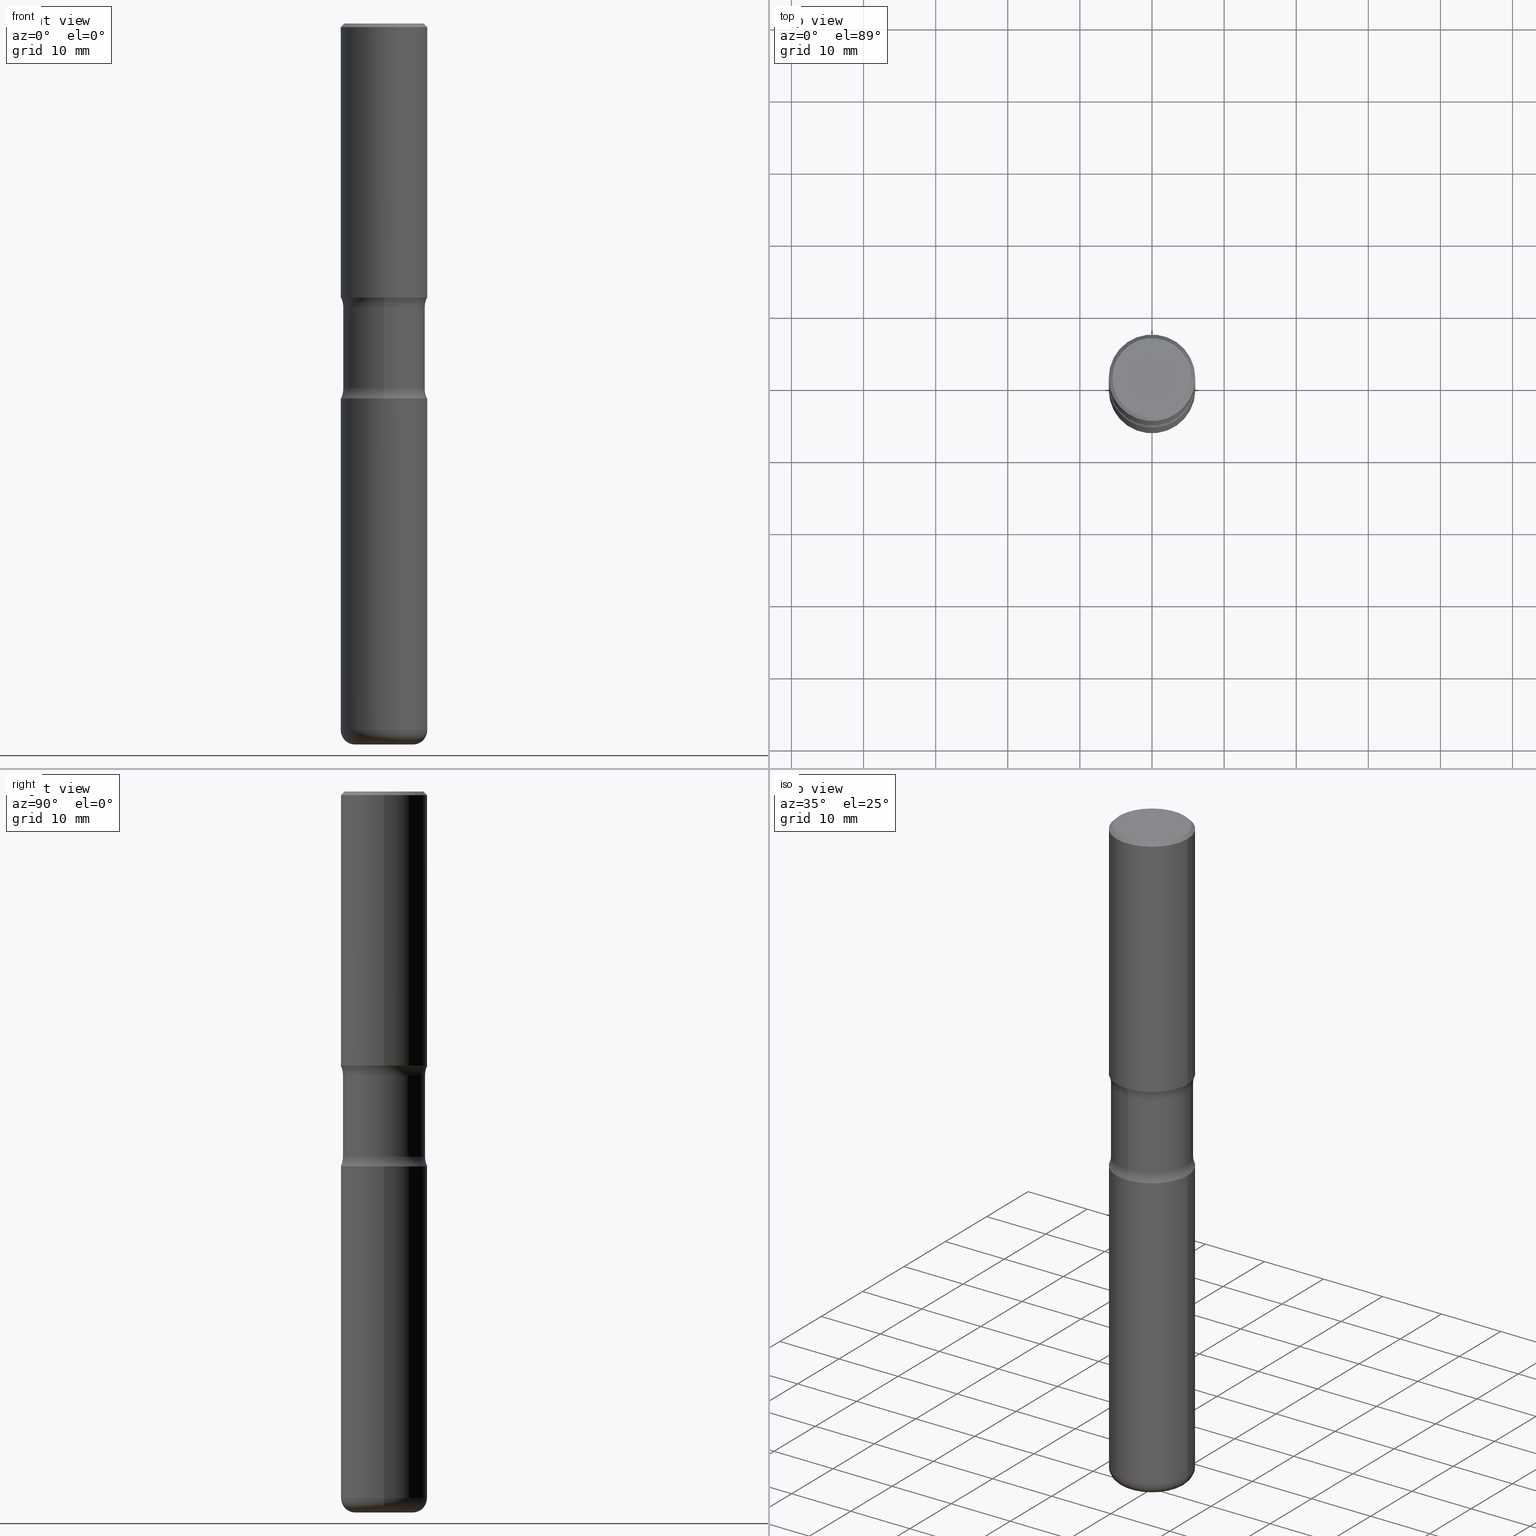
[diagram: canonical four-view strip — front | top / right | iso, engineering-drawing reading convention]
A machine part, canonical four-view strip (front | top / right | iso — engineering-drawing reading convention). The complete STEP part file that produces these views, byte-faithful:
ISO-10303-21;
HEADER;
FILE_DESCRIPTION (( 'STEP AP203' ),
    '1' );
FILE_NAME ('44748.STEP',
    '2024-03-02T02:43:39',
    ( '' ),
    ( '' ),
    'SwSTEP 2.0',
    'SolidWorks 2023',
    '' );
FILE_SCHEMA (( 'CONFIG_CONTROL_DESIGN' ));
ENDSEC;

DATA;
#1 = ORIENTED_EDGE ( 'NONE', *, *, #469, .T. ) ;
#2 = CARTESIAN_POINT ( 'NONE',  ( 9.435352294904113263E-29, -1.347118244965851008E-14, -3.858300000000000729 ) ) ;
#3 = ADVANCED_FACE ( 'NONE', ( #355 ), #12, .F. ) ;
#4 = ORIENTED_EDGE ( 'NONE', *, *, #254, .T. ) ;
#5 = CARTESIAN_POINT ( 'NONE',  ( -0.2362000000000004374, -9.684154870446855490E-16, -1.496100000000000430 ) ) ;
#6 = PRODUCT ( '44748', '44748', '', ( #299 ) ) ;
#7 = AXIS2_PLACEMENT_3D ( 'NONE', #407, #205, #544 ) ;
#8 = AXIS2_PLACEMENT_3D ( 'NONE', #295, #450, #28 ) ;
#9 = EDGE_LOOP ( 'NONE', ( #113, #551, #143, #58 ) ) ;
#10 = DIRECTION ( 'NONE',  ( -6.982962677686265133E-15, -1.000000000000000000, 0.000000000000000000 ) ) ;
#11 = ADVANCED_FACE ( 'NONE', ( #291 ), #516, .T. ) ;
#12 = PLANE ( 'NONE',  #212 ) ;
#13 = FACE_OUTER_BOUND ( 'NONE', #513, .T. ) ;
#14 = DIRECTION ( 'NONE',  ( 6.982962677686265922E-15, 1.000000000000000000, -3.469747663417773452E-15 ) ) ;
#15 = ORIENTED_EDGE ( 'NONE', *, *, #469, .F. ) ;
#16 = CARTESIAN_POINT ( 'NONE',  ( 9.687424416766102159E-29, -1.366059178122345804E-14, -3.937000000000000721 ) ) ;
#17 = ORIENTED_EDGE ( 'NONE', *, *, #345, .T. ) ;
#18 = CIRCLE ( 'NONE', #357, 0.07869999999999956197 ) ;
#19 = FACE_OUTER_BOUND ( 'NONE', #229, .T. ) ;
#20 = CARTESIAN_POINT ( 'NONE',  ( 0.1575000000000002232, -1.484577865276105326E-14, -3.937000000000000277 ) ) ;
#21 = FACE_OUTER_BOUND ( 'NONE', #472, .T. ) ;
#22 =( NAMED_UNIT ( * ) SI_UNIT ( $, .STERADIAN. ) SOLID_ANGLE_UNIT ( ) );
#23 = EDGE_CURVE ( 'NONE', #351, #501, #97, .T. ) ;
#24 = ORIENTED_EDGE ( 'NONE', *, *, #130, .F. ) ;
#25 = DIRECTION ( 'NONE',  ( -2.445468806185136597E-29, 3.491481338843145583E-15, 1.000000000000000000 ) ) ;
#26 = CARTESIAN_POINT ( 'NONE',  ( 0.000000000000000000, 0.000000000000000000, 0.000000000000000000 ) ) ;
#27 = ORIENTED_EDGE ( 'NONE', *, *, #535, .T. ) ;
#28 = DIRECTION ( 'NONE',  ( 1.000000000000000000, -6.982962677686270655E-15, 4.883557194083114583E-29 ) ) ;
#29 = AXIS2_PLACEMENT_3D ( 'NONE', #459, #253, #341 ) ;
#30 = AXIS2_PLACEMENT_3D ( 'NONE', #230, #431, #282 ) ;
#31 = DIRECTION ( 'NONE',  ( -6.982962677686265922E-15, -1.000000000000000000, 3.446307114162222138E-15 ) ) ;
#32 = LINE ( 'NONE', #417, #435 ) ;
#33 = SHAPE_DEFINITION_REPRESENTATION ( #315, #439 ) ;
#34 = DIRECTION ( 'NONE',  ( -1.000000000000000000, 6.982962677686265922E-15, -4.883557194083112340E-29 ) ) ;
#35 = ORIENTED_EDGE ( 'NONE', *, *, #380, .T. ) ;
#36 = SECURITY_CLASSIFICATION_LEVEL ( 'unclassified' ) ;
#37 = AXIS2_PLACEMENT_3D ( 'NONE', #300, #86, #82 ) ;
#38 = CARTESIAN_POINT ( 'NONE',  ( 0.2361999999999999378, -1.512055823412800660E-14, -3.858300000000000729 ) ) ;
#39 = LINE ( 'NONE', #375, #124 ) ;
#40 = AXIS2_PLACEMENT_3D ( 'NONE', #239, #117, #532 ) ;
#41 = APPROVAL_ROLE ( '' ) ;
#42 = CARTESIAN_POINT ( 'NONE',  ( 0.2362000000000002153, -8.797136381349187883E-15, -2.047200000000000575 ) ) ;
#43 = DIRECTION ( 'NONE',  ( -2.445468806185136597E-29, 3.491481338843145583E-15, 1.000000000000000000 ) ) ;
#44 = EDGE_CURVE ( 'NONE', #313, #430, #231, .T. ) ;
#45 = APPROVAL_DATE_TIME ( #81, #178 ) ;
#46 = ORIENTED_EDGE ( 'NONE', *, *, #506, .F. ) ;
#47 = AXIS2_PLACEMENT_3D ( 'NONE', #121, #444, #72 ) ;
#48 = CARTESIAN_POINT ( 'NONE',  ( 1.649375784469547210E-15, 0.2361999999999930544, -2.047200000000001463 ) ) ;
#49 = ADVANCED_FACE ( 'NONE', ( #371 ), #210, .T. ) ;
#50 = DIRECTION ( 'NONE',  ( 6.982962677686265922E-15, 1.000000000000000000, -3.658724991514637697E-15 ) ) ;
#51 = ORIENTED_EDGE ( 'NONE', *, *, #246, .T. ) ;
#52 = PLANE ( 'NONE',  #78 ) ;
#53 = CC_DESIGN_DATE_AND_TIME_ASSIGNMENT ( #555, #136, ( #238 ) ) ;
#54 = ORIENTED_EDGE ( 'NONE', *, *, #137, .T. ) ;
#55 = DIRECTION ( 'NONE',  ( 2.477013798679166358E-29, -3.446307114162222532E-15, -1.000000000000000000 ) ) ;
#56 = MANIFOLD_SOLID_BREP ( 'Body-Move/Copy2[2]', #185 ) ;
#57 = AXIS2_PLACEMENT_3D ( 'NONE', #427, #104, #189 ) ;
#58 = ORIENTED_EDGE ( 'NONE', *, *, #254, .F. ) ;
#59 = DIRECTION ( 'NONE',  ( 1.000000000000000000, -6.982962677686265133E-15, 0.000000000000000000 ) ) ;
#60 = PRODUCT_RELATED_PRODUCT_CATEGORY ( 'detail', '', ( #6 ) ) ;
#61 = ORIENTED_EDGE ( 'NONE', *, *, #44, .F. ) ;
#62 = FACE_OUTER_BOUND ( 'NONE', #226, .T. ) ;
#63 = FACE_OUTER_BOUND ( 'NONE', #139, .T. ) ;
#64 = CARTESIAN_POINT ( 'NONE',  ( 1.564183639801761664E-15, 0.2239999999999945923, -1.549962417324143304 ) ) ;
#65 = CARTESIAN_POINT ( 'NONE',  ( 4.890937612370289799E-31, -6.982962677686315028E-17, -0.02000000000000006981 ) ) ;
#66 = CARTESIAN_POINT ( 'NONE',  ( 0.2362000000000000210, -1.690279253850499166E-15, -0.02000000000000006981 ) ) ;
#67 = VERTEX_POINT ( 'NONE', #419 ) ;
#68 = CARTESIAN_POINT ( 'NONE',  ( 9.435352294904113263E-29, -1.347118244965851008E-14, -3.858300000000000729 ) ) ;
#69 = CC_DESIGN_PERSON_AND_ORGANIZATION_ASSIGNMENT ( #503, #307, ( #456 ) ) ;
#70 = CARTESIAN_POINT ( 'NONE',  ( -1.620449627073587155E-15, -0.2362000000000073763, -2.047200000000000131 ) ) ;
#71 = VERTEX_POINT ( 'NONE', #20 ) ;
#72 = DIRECTION ( 'NONE',  ( 6.982962677686265133E-15, 1.000000000000000000, -3.446307114162222532E-15 ) ) ;
#73 = EDGE_CURVE ( 'NONE', #156, #557, #184, .T. ) ;
#74 = CARTESIAN_POINT ( 'NONE',  ( 5.006363740022213922E-29, -7.147760596879691357E-15, -2.047200000000000575 ) ) ;
#75 = DIRECTION ( 'NONE',  ( -1.000000000000000000, 6.982962677686265922E-15, -4.876176775795935793E-29 ) ) ;
#76 = DIRECTION ( 'NONE',  ( 6.982962677686265922E-15, 1.000000000000000000, -3.469747663417773452E-15 ) ) ;
#77 = AXIS2_PLACEMENT_3D ( 'NONE', #26, #153, #158 ) ;
#78 = AXIS2_PLACEMENT_3D ( 'NONE', #524, #478, #317 ) ;
#79 = PLANE ( 'NONE',  #134 ) ;
#80 = CARTESIAN_POINT ( 'NONE',  ( 1.564183639801820828E-15, 0.2239999999999864044, -3.937000000000001165 ) ) ;
#81 = DATE_AND_TIME ( #457, #305 ) ;
#82 = DIRECTION ( 'NONE',  ( 6.982962677686265922E-15, 1.000000000000000000, -3.469747663417773452E-15 ) ) ;
#83 = PERSON_AND_ORGANIZATION_ROLE ( 'creator' ) ;
#84 = ORIENTED_EDGE ( 'NONE', *, *, #173, .F. ) ;
#85 = LINE ( 'NONE', #215, #108 ) ;
#86 = DIRECTION ( 'NONE',  ( 2.477013798679166358E-29, -3.446307114162222532E-15, -1.000000000000000000 ) ) ;
#87 = DIRECTION ( 'NONE',  ( 1.000000000000000000, -6.982962677686266711E-15, 4.876176775795935793E-29 ) ) ;
#88 = EDGE_CURVE ( 'NONE', #557, #156, #445, .T. ) ;
#89 = LOCAL_TIME ( 21, 43, 39.00000000000000000, #336 ) ;
#90 = EDGE_LOOP ( 'NONE', ( #479, #35, #559, #423 ) ) ;
#91 = CARTESIAN_POINT ( 'NONE',  ( 0.2362000000000002431, -1.649375784469497906E-15, 1.151752954443001209E-29 ) ) ;
#92 = CC_DESIGN_APPROVAL ( #481, ( #456 ) ) ;
#93 = PERSON_AND_ORGANIZATION ( #120, #115 ) ;
#94 = APPROVAL_DATE_TIME ( #468, #481 ) ;
#95 = ORIENTED_EDGE ( 'NONE', *, *, #323, .F. ) ;
#96 = EDGE_LOOP ( 'NONE', ( #95, #428, #550, #247 ) ) ;
#97 = CIRCLE ( 'NONE', #29, 0.2240000000000000324 ) ;
#98 = TOROIDAL_SURFACE ( 'NONE', #8, 0.1575000000000002232, 0.07869999999999957585 ) ;
#99 = EDGE_LOOP ( 'NONE', ( #405, #132 ) ) ;
#100 = ORIENTED_EDGE ( 'NONE', *, *, #73, .T. ) ;
#101 = DIRECTION ( 'NONE',  ( 2.477013798679166358E-29, -3.446307114162222532E-15, -1.000000000000000000 ) ) ;
#102 = ORIENTED_EDGE ( 'NONE', *, *, #246, .F. ) ;
#103 = ORIENTED_EDGE ( 'NONE', *, *, #44, .T. ) ;
#104 = DIRECTION ( 'NONE',  ( -6.982962677686266711E-15, -1.000000000000000000, 3.491481338843145583E-15 ) ) ;
#105 = ORIENTED_EDGE ( 'NONE', *, *, #209, .F. ) ;
#106 = DIRECTION ( 'NONE',  ( 1.000000000000000000, -6.982962677686270655E-15, 4.883557194083114583E-29 ) ) ;
#107 = CARTESIAN_POINT ( 'NONE',  ( 3.658665880933583510E-29, -5.223605231043231238E-15, -1.496100000000000430 ) ) ;
#108 = VECTOR ( 'NONE', #553, 39.37007874015748143 ) ;
#109 = CIRCLE ( 'NONE', #125, 0.1250000000000000278 ) ;
#110 = VERTEX_POINT ( 'NONE', #392 ) ;
#111 = FACE_OUTER_BOUND ( 'NONE', #353, .T. ) ;
#112 = ADVANCED_FACE ( 'NONE', ( #523 ), #276, .F. ) ;
#113 = ORIENTED_EDGE ( 'NONE', *, *, #369, .T. ) ;
#114 = DIRECTION ( 'NONE',  ( 1.000000000000000000, -6.860497997771530774E-15, 4.841352104320737374E-29 ) ) ;
#115 = ORGANIZATION ( 'UNSPECIFIED', 'UNSPECIFIED', '' ) ;
#116 = DIRECTION ( 'NONE',  ( -2.445468806185136877E-29, 3.491481338843145188E-15, 1.000000000000000000 ) ) ;
#117 = DIRECTION ( 'NONE',  ( -2.445468806185136597E-29, 3.491481338843145583E-15, 1.000000000000000000 ) ) ;
#118 = EDGE_CURVE ( 'NONE', #485, #287, #326, .T. ) ;
#119 = DIRECTION ( 'NONE',  ( -2.445468806185136877E-29, 3.491481338843145188E-15, 1.000000000000000000 ) ) ;
#120 = PERSON ( 'UNSPECIFIED', 'UNSPECIFIED', 'UNSPECIFIED', ('UNSPECIFIED'), ('UNSPECIFIED'), ('UNSPECIFIED') ) ;
#121 = CARTESIAN_POINT ( 'NONE',  ( 3.742693760873325103E-29, -5.479961055837061701E-15, -1.549962417324142638 ) ) ;
#122 = DESIGN_CONTEXT ( 'detailed design', #163, 'design' ) ;
#123 = APPLICATION_PROTOCOL_DEFINITION ( 'international standard', 'config_control_design', 1994, #286 ) ;
#124 = VECTOR ( 'NONE', #119, 39.37007874015748143 ) ;
#125 = AXIS2_PLACEMENT_3D ( 'NONE', #285, #114, #499 ) ;
#126 = VERTEX_POINT ( 'NONE', #127 ) ;
#127 = CARTESIAN_POINT ( 'NONE',  ( -1.620449627073601355E-15, -0.2362000000000055167, -1.496099999999999541 ) ) ;
#128 = APPROVAL_ROLE ( '' ) ;
#129 = DIRECTION ( 'NONE',  ( 1.000000000000000000, -6.982962677686265922E-15, 4.876176775795935793E-29 ) ) ;
#130 = EDGE_CURVE ( 'NONE', #126, #171, #475, .T. ) ;
#131 = APPROVAL_ROLE ( '' ) ;
#132 = ORIENTED_EDGE ( 'NONE', *, *, #118, .T. ) ;
#133 = LINE ( 'NONE', #91, #388 ) ;
#134 = AXIS2_PLACEMENT_3D ( 'NONE', #176, #256, #470 ) ;
#135 = AXIS2_PLACEMENT_3D ( 'NONE', #522, #55, #520 ) ;
#136 = DATE_TIME_ROLE ( 'creation_date' ) ;
#137 = EDGE_CURVE ( 'NONE', #193, #234, #39, .T. ) ;
#138 = ORIENTED_EDGE ( 'NONE', *, *, #73, .F. ) ;
#139 = EDGE_LOOP ( 'NONE', ( #318, #1, #214, #309 ) ) ;
#140 = CARTESIAN_POINT ( 'NONE',  ( 3.742693760873325103E-29, -5.479961055837061701E-15, -1.549962417324142638 ) ) ;
#141 = AXIS2_PLACEMENT_3D ( 'NONE', #279, #201, #232 ) ;
#142 = VECTOR ( 'NONE', #383, 39.37007874015748143 ) ;
#143 = ORIENTED_EDGE ( 'NONE', *, *, #88, .F. ) ;
#144 = DIRECTION ( 'NONE',  ( -2.445468806185136597E-29, 3.491481338843145583E-15, 1.000000000000000000 ) ) ;
#145 = ORIENTED_EDGE ( 'NONE', *, *, #345, .F. ) ;
#146 = ADVANCED_FACE ( 'NONE', ( #552 ), #505, .T. ) ;
#147 = EDGE_CURVE ( 'NONE', #501, #171, #160, .T. ) ;
#148 = FACE_OUTER_BOUND ( 'NONE', #9, .T. ) ;
#149 = ORIENTED_EDGE ( 'NONE', *, *, #432, .T. ) ;
#150 = AXIS2_PLACEMENT_3D ( 'NONE', #65, #241, #403 ) ;
#151 = AXIS2_PLACEMENT_3D ( 'NONE', #488, #144, #59 ) ;
#152 = CARTESIAN_POINT ( 'NONE',  ( 4.874644878630298658E-29, -6.959700971927467721E-15, -1.993337582675859032 ) ) ;
#153 = DIRECTION ( 'NONE',  ( -2.445468806185136597E-29, 3.491481338843145583E-15, 1.000000000000000000 ) ) ;
#154 = LENGTH_MEASURE_WITH_UNIT ( LENGTH_MEASURE( 0.02539999999999999897 ), #360 );
#155 = EDGE_CURVE ( 'NONE', #430, #180, #133, .T. ) ;
#156 = VERTEX_POINT ( 'NONE', #264 ) ;
#157 = DIRECTION ( 'NONE',  ( 2.477013798679166358E-29, -3.446307114162222532E-15, -1.000000000000000000 ) ) ;
#158 = DIRECTION ( 'NONE',  ( 1.000000000000000000, -6.982962677686266711E-15, 4.876176775795935793E-29 ) ) ;
#159 = VERTEX_POINT ( 'NONE', #418 ) ;
#160 = CIRCLE ( 'NONE', #493, 0.1250000000000000278 ) ;
#161 = CARTESIAN_POINT ( 'NONE',  ( 5.219257071676098903E-46, -7.451715851902235727E-32, -2.134256245050205639E-17 ) ) ;
#162 = EDGE_LOOP ( 'NONE', ( #102, #458, #149, #385 ) ) ;
#163 = APPLICATION_CONTEXT ( 'configuration controlled 3d designs of mechanical parts and assemblies' ) ;
#164 = CARTESIAN_POINT ( 'NONE',  ( 0.000000000000000000, 0.000000000000000000, 0.000000000000000000 ) ) ;
#165 = AXIS2_PLACEMENT_3D ( 'NONE', #533, #157, #396 ) ;
#166 = CONICAL_SURFACE ( 'NONE', #402, 0.2362000000000000210, 0.7853981633974477239 ) ;
#167 = EDGE_CURVE ( 'NONE', #159, #234, #349, .T. ) ;
#168 = DIRECTION ( 'NONE',  ( 1.000000000000000000, -6.982962677686266711E-15, 4.876176775795936353E-29 ) ) ;
#169 = CC_DESIGN_PERSON_AND_ORGANIZATION_ASSIGNMENT ( #93, #83, ( #238 ) ) ;
#170 = DATE_AND_TIME ( #463, #312 ) ;
#171 = VERTEX_POINT ( 'NONE', #377 ) ;
#172 = PERSON_AND_ORGANIZATION ( #120, #115 ) ;
#173 = EDGE_CURVE ( 'NONE', #110, #337, #365, .T. ) ;
#174 = VECTOR ( 'NONE', #196, 39.37007874015748143 ) ;
#175 = CIRCLE ( 'NONE', #455, 0.2362000000000002431 ) ;
#176 = CARTESIAN_POINT ( 'NONE',  ( 1.509716530915770718E-15, 0.2162000000000000033, -7.655295466831390880E-16 ) ) ;
#177 = DIRECTION ( 'NONE',  ( 1.000000000000000000, 0.000000000000000000, 0.000000000000000000 ) ) ;
#178 = APPROVAL ( #560, 'UNSPECIFIED' ) ;
#179 = ORIENTED_EDGE ( 'NONE', *, *, #373, .F. ) ;
#180 = VERTEX_POINT ( 'NONE', #66 ) ;
#181 = CARTESIAN_POINT ( 'NONE',  ( 9.627810689950883669E-29, -1.374596203102546341E-14, -3.937000000000000277 ) ) ;
#182 = ORIENTED_EDGE ( 'NONE', *, *, #535, .F. ) ;
#183 = FACE_OUTER_BOUND ( 'NONE', #434, .T. ) ;
#184 = CIRCLE ( 'NONE', #141, 0.2240000000000000879 ) ;
#185 = CLOSED_SHELL ( 'NONE', ( #271, #339, #11, #187, #284, #49 ) ) ;
#186 = CIRCLE ( 'NONE', #135, 0.2362000000000002431 ) ;
#187 = ADVANCED_FACE ( 'NONE', ( #358 ), #79, .F. ) ;
#188 = VERTEX_POINT ( 'NONE', #258 ) ;
#189 = DIRECTION ( 'NONE',  ( 1.000000000000000000, -6.982962677686259611E-15, 0.000000000000000000 ) ) ;
#190 = DIRECTION ( 'NONE',  ( 6.982962677686265922E-15, 1.000000000000000000, -3.446307114162222138E-15 ) ) ;
#191 = ORIENTED_EDGE ( 'NONE', *, *, #542, .T. ) ;
#192 = CARTESIAN_POINT ( 'NONE',  ( -0.2362000000000000210, 1.579546157692633424E-15, -0.02000000000000006981 ) ) ;
#193 = VERTEX_POINT ( 'NONE', #38 ) ;
#194 = LINE ( 'NONE', #192, #280 ) ;
#195 = AXIS2_PLACEMENT_3D ( 'NONE', #554, #347, #529 ) ;
#196 = DIRECTION ( 'NONE',  ( 2.477013798679166639E-29, -3.446307114162222138E-15, -1.000000000000000000 ) ) ;
#197 = CIRCLE ( 'NONE', #298, 0.2240000000000000324 ) ;
#198 = CC_DESIGN_APPROVAL ( #178, ( #509 ) ) ;
#199 = DIRECTION ( 'NONE',  ( 7.105427357601001859E-15, 1.000000000000000000, -3.491481338843145583E-15 ) ) ;
#200 = PLANE ( 'NONE',  #453 ) ;
#201 = DIRECTION ( 'NONE',  ( 2.477013798679166358E-29, -3.446307114162222532E-15, -1.000000000000000000 ) ) ;
#202 = DIRECTION ( 'NONE',  ( -2.477013798679166358E-29, 3.446307114162222138E-15, 1.000000000000000000 ) ) ;
#203 = CIRCLE ( 'NONE', #502, 0.1249999999999999584 ) ;
#204 = PLANE ( 'NONE',  #381 ) ;
#205 = DIRECTION ( 'NONE',  ( 2.445468806185136597E-29, -3.491481338843145583E-15, -1.000000000000000000 ) ) ;
#206 = CARTESIAN_POINT ( 'NONE',  ( 5.006363740022213922E-29, -7.147760596879691357E-15, -2.047200000000000575 ) ) ;
#207 = CARTESIAN_POINT ( 'NONE',  ( 0.000000000000000000, 0.000000000000000000, 0.000000000000000000 ) ) ;
#208 = DIRECTION ( 'NONE',  ( 1.000000000000000000, -6.982962677686267499E-15, 0.000000000000000000 ) ) ;
#209 = EDGE_CURVE ( 'NONE', #351, #156, #32, .T. ) ;
#210 = CYLINDRICAL_SURFACE ( 'NONE', #537, 0.2362000000000002431 ) ;
#211 = APPROVAL_STATUS ( 'not_yet_approved' ) ;
#212 = AXIS2_PLACEMENT_3D ( 'NONE', #525, #474, #75 ) ;
#213 = AXIS2_PLACEMENT_3D ( 'NONE', #140, #311, #275 ) ;
#214 = ORIENTED_EDGE ( 'NONE', *, *, #534, .F. ) ;
#215 = CARTESIAN_POINT ( 'NONE',  ( 0.2362000000000000210, -1.690279253850499166E-15, -0.02000000000000006981 ) ) ;
#216 = DIRECTION ( 'NONE',  ( 1.000000000000000000, -6.982962677686266711E-15, 0.000000000000000000 ) ) ;
#217 = ADVANCED_FACE ( 'NONE', ( #464 ), #540, .T. ) ;
#218 = DIRECTION ( 'NONE',  ( 0.000000000000000000, 0.000000000000000000, 1.000000000000000000 ) ) ;
#219 = CC_DESIGN_PERSON_AND_ORGANIZATION_ASSIGNMENT ( #372, #471, ( #6 ) ) ;
#220 = PERSON_AND_ORGANIZATION ( #120, #115 ) ;
#221 = AXIS2_PLACEMENT_3D ( 'NONE', #181, #316, #278 ) ;
#222 = AXIS2_PLACEMENT_3D ( 'NONE', #404, #497, #364 ) ;
#223 = ORIENTED_EDGE ( 'NONE', *, *, #480, .T. ) ;
#224 = EDGE_LOOP ( 'NONE', ( #237, #24 ) ) ;
#225 = CYLINDRICAL_SURFACE ( 'NONE', #494, 0.2240000000000000602 ) ;
#226 = EDGE_LOOP ( 'NONE', ( #17, #223, #46, #408 ) ) ;
#227 = CARTESIAN_POINT ( 'NONE',  ( -0.1575000000000002232, -1.220986886499823132E-14, -3.937000000000000277 ) ) ;
#228 = ADVANCED_FACE ( 'NONE', ( #262 ), #507, .F. ) ;
#229 = EDGE_LOOP ( 'NONE', ( #495, #442, #379, #182 ) ) ;
#230 = CARTESIAN_POINT ( 'NONE',  ( -2.394313801222216275E-15, -0.3490000000000070268, -1.993337582675857922 ) ) ;
#231 = CIRCLE ( 'NONE', #401, 0.2362000000000004374 ) ;
#232 = DIRECTION ( 'NONE',  ( 6.982962677686265922E-15, 1.000000000000000000, -3.658724991514636908E-15 ) ) ;
#233 = AXIS2_PLACEMENT_3D ( 'NONE', #164, #218, #177 ) ;
#234 = VERTEX_POINT ( 'NONE', #42 ) ;
#235 = CARTESIAN_POINT ( 'NONE',  ( 4.890937612370289799E-31, -6.982962677686315028E-17, -0.02000000000000006981 ) ) ;
#236 = DIRECTION ( 'NONE',  ( 2.477013798679166358E-29, -3.446307114162222532E-15, -1.000000000000000000 ) ) ;
#237 = ORIENTED_EDGE ( 'NONE', *, *, #384, .F. ) ;
#238 = PRODUCT_DEFINITION ( 'UNKNOWN', '', #509, #122 ) ;
#239 = CARTESIAN_POINT ( 'NONE',  ( 9.435352294904113263E-29, -1.347118244965851008E-14, -3.858300000000000729 ) ) ;
#240 = CLOSED_SHELL ( 'NONE', ( #399, #228, #473, #421, #112, #515, #443, #460 ) ) ;
#241 = DIRECTION ( 'NONE',  ( -2.445468806185136597E-29, 3.491481338843145583E-15, 1.000000000000000000 ) ) ;
#242 = CIRCLE ( 'NONE', #321, 0.2362000000000000210 ) ;
#243 = ORIENTED_EDGE ( 'NONE', *, *, #489, .T. ) ;
#244 = CARTESIAN_POINT ( 'NONE',  ( 5.006363740022213922E-29, -7.147760596879691357E-15, -2.047200000000000575 ) ) ;
#245 = FACE_OUTER_BOUND ( 'NONE', #511, .T. ) ;
#246 = EDGE_CURVE ( 'NONE', #110, #180, #85, .T. ) ;
#247 = ORIENTED_EDGE ( 'NONE', *, *, #88, .T. ) ;
#248 = CARTESIAN_POINT ( 'NONE',  ( 1.564183639801773102E-15, 0.2239999999999931213, -1.993337582675859698 ) ) ;
#249 = MANIFOLD_SOLID_BREP ( 'Body-Move/Copy2[4]', #240 ) ;
#250 = CIRCLE ( 'NONE', #290, 0.2362000000000004374 ) ;
#251 = DIRECTION ( 'NONE',  ( 1.000000000000000000, -6.982962677686264344E-15, 0.000000000000000000 ) ) ;
#252 = UNCERTAINTY_MEASURE_WITH_UNIT (LENGTH_MEASURE( 1.000000000000000082E-05 ), #368, 'distance_accuracy_value', 'NONE');
#253 = DIRECTION ( 'NONE',  ( 2.477013798679166358E-29, -3.446307114162222532E-15, -1.000000000000000000 ) ) ;
#254 = EDGE_CURVE ( 'NONE', #501, #557, #454, .T. ) ;
#255 = PERSON_AND_ORGANIZATION ( #120, #115 ) ;
#256 = DIRECTION ( 'NONE',  ( 2.438088387897960049E-29, -3.491481338843145188E-15, -1.000000000000000000 ) ) ;
#257 = DIRECTION ( 'NONE',  ( -2.445468806185136597E-29, 3.491481338843145583E-15, 1.000000000000000000 ) ) ;
#258 = CARTESIAN_POINT ( 'NONE',  ( -0.2362000000000000210, 1.579546157692633424E-15, -0.02000000000000006981 ) ) ;
#259 = COORDINATED_UNIVERSAL_TIME_OFFSET ( 5, 0, .BEHIND. ) ;
#260 = APPROVAL_PERSON_ORGANIZATION ( #220, #393, #131 ) ;
#261 = AXIS2_PLACEMENT_3D ( 'NONE', #350, #482, #390 ) ;
#262 = FACE_OUTER_BOUND ( 'NONE', #324, .T. ) ;
#263 = EDGE_LOOP ( 'NONE', ( #531, #270 ) ) ;
#264 = CARTESIAN_POINT ( 'NONE',  ( -1.578600589287180697E-15, -0.2240000000000070546, -1.993337582675858144 ) ) ;
#265 = COORDINATED_UNIVERSAL_TIME_OFFSET ( 5, 0, .BEHIND. ) ;
#266 = APPROVAL_DATE_TIME ( #415, #393 ) ;
#267 = ORIENTED_EDGE ( 'NONE', *, *, #369, .F. ) ;
#268 = DIRECTION ( 'NONE',  ( 2.445468806185136597E-29, -3.491481338843145583E-15, -1.000000000000000000 ) ) ;
#269 = AXIS2_PLACEMENT_3D ( 'NONE', #2, #484, #106 ) ;
#270 = ORIENTED_EDGE ( 'NONE', *, *, #173, .T. ) ;
#271 = ADVANCED_FACE ( 'NONE', ( #63 ), #359, .T. ) ;
#272 = EDGE_CURVE ( 'NONE', #188, #180, #320, .T. ) ;
#273 = CARTESIAN_POINT ( 'NONE',  ( -0.2162000000000000033, 1.544631344304202170E-15, -2.134256245051273683E-17 ) ) ;
#274 = EDGE_LOOP ( 'NONE', ( #15, #103, #363, #517 ) ) ;
#275 = DIRECTION ( 'NONE',  ( 6.982962677686265133E-15, 1.000000000000000000, -3.446307114162222532E-15 ) ) ;
#276 = PLANE ( 'NONE',  #289 ) ;
#277 = ORIENTED_EDGE ( 'NONE', *, *, #489, .F. ) ;
#278 = DIRECTION ( 'NONE',  ( 1.000000000000000000, -6.982962677686265133E-15, 0.000000000000000000 ) ) ;
#279 = CARTESIAN_POINT ( 'NONE',  ( 4.872945789080098488E-29, -6.962134164869526576E-15, -1.993337582675859032 ) ) ;
#280 = VECTOR ( 'NONE', #354, 39.37007874015748143 ) ;
#281 = ORIENTED_EDGE ( 'NONE', *, *, #167, .F. ) ;
#282 = DIRECTION ( 'NONE',  ( 6.860497997771532351E-15, 1.000000000000000000, 0.000000000000000000 ) ) ;
#283 = CARTESIAN_POINT ( 'NONE',  ( 5.006363740022213922E-29, -7.147760596879691357E-15, -2.047200000000000575 ) ) ;
#284 = ADVANCED_FACE ( 'NONE', ( #21 ), #200, .F. ) ;
#285 = CARTESIAN_POINT ( 'NONE',  ( -2.394313801222228108E-15, -0.3490000000000056390, -1.549962417324141528 ) ) ;
#286 = APPLICATION_CONTEXT ( 'configuration controlled 3d designs of mechanical parts and assemblies' ) ;
#287 = VERTEX_POINT ( 'NONE', #48 ) ;
#288 = DIRECTION ( 'NONE',  ( 2.477013798679166358E-29, -3.446307114162222532E-15, -1.000000000000000000 ) ) ;
#289 = AXIS2_PLACEMENT_3D ( 'NONE', #107, #438, #190 ) ;
#290 = AXIS2_PLACEMENT_3D ( 'NONE', #536, #25, #452 ) ;
#291 = FACE_OUTER_BOUND ( 'NONE', #162, .T. ) ;
#292 = EDGE_CURVE ( 'NONE', #397, #71, #526, .T. ) ;
#293 = DIRECTION ( 'NONE',  ( -2.445468806185136597E-29, 3.491481338843145583E-15, 1.000000000000000000 ) ) ;
#294 = CC_DESIGN_DATE_AND_TIME_ASSIGNMENT ( #170, #303, ( #456 ) ) ;
#295 = CARTESIAN_POINT ( 'NONE',  ( 9.435352294904113263E-29, -1.347118244965851008E-14, -3.858300000000000729 ) ) ;
#296 = DIRECTION ( 'NONE',  ( -2.445468806185136877E-29, 3.491481338843145188E-15, 1.000000000000000000 ) ) ;
#297 = CARTESIAN_POINT ( 'NONE',  ( -0.1575000000000002232, -1.235207764083635089E-14, -3.858300000000000729 ) ) ;
#298 = AXIS2_PLACEMENT_3D ( 'NONE', #440, #346, #50 ) ;
#299 = MECHANICAL_CONTEXT ( 'NONE', #286, 'mechanical' ) ;
#300 = CARTESIAN_POINT ( 'NONE',  ( 3.641281435570124005E-29, -5.248500746264888618E-15, -1.496100000000000430 ) ) ;
#301 = PERSON_AND_ORGANIZATION ( #120, #115 ) ;
#302 = AXIS2_PLACEMENT_3D ( 'NONE', #74, #43, #216 ) ;
#303 = DATE_TIME_ROLE ( 'classification_date' ) ;
#304 = CIRCLE ( 'NONE', #57, 0.07869999999999956197 ) ;
#305 = LOCAL_TIME ( 21, 43, 39.00000000000000000, #259 ) ;
#306 = CC_DESIGN_PERSON_AND_ORGANIZATION_ASSIGNMENT ( #255, #340, ( #509 ) ) ;
#307 = PERSON_AND_ORGANIZATION_ROLE ( 'classification_officer' ) ;
#308 = ORIENTED_EDGE ( 'NONE', *, *, #496, .F. ) ;
#309 = ORIENTED_EDGE ( 'NONE', *, *, #155, .F. ) ;
#310 = ORIENTED_EDGE ( 'NONE', *, *, #534, .T. ) ;
#311 = DIRECTION ( 'NONE',  ( 2.477013798679166358E-29, -3.446307114162222532E-15, -1.000000000000000000 ) ) ;
#312 = LOCAL_TIME ( 21, 43, 39.00000000000000000, #413 ) ;
#313 = VERTEX_POINT ( 'NONE', #5 ) ;
#314 = DIRECTION ( 'NONE',  ( 6.982962677686265133E-15, 1.000000000000000000, -3.446307114162222532E-15 ) ) ;
#315 = PRODUCT_DEFINITION_SHAPE ( 'NONE', 'NONE',  #238 ) ;
#316 = DIRECTION ( 'NONE',  ( -2.445468806185136597E-29, 3.491481338843145583E-15, 1.000000000000000000 ) ) ;
#317 = DIRECTION ( 'NONE',  ( -1.000000000000000000, 6.982962677686265922E-15, -4.876176775795935793E-29 ) ) ;
#318 = ORIENTED_EDGE ( 'NONE', *, *, #496, .T. ) ;
#319 = CYLINDRICAL_SURFACE ( 'NONE', #261, 0.2240000000000000602 ) ;
#320 = CIRCLE ( 'NONE', #150, 0.2362000000000000210 ) ;
#321 = AXIS2_PLACEMENT_3D ( 'NONE', #68, #409, #251 ) ;
#322 = DIRECTION ( 'NONE',  ( -1.000000000000000000, 6.982962677686267499E-15, 0.000000000000000000 ) ) ;
#323 = EDGE_CURVE ( 'NONE', #485, #156, #436, .T. ) ;
#324 = EDGE_LOOP ( 'NONE', ( #382, #547, #100, #179 ) ) ;
#325 = ORIENTED_EDGE ( 'NONE', *, *, #130, .T. ) ;
#326 = CIRCLE ( 'NONE', #486, 0.2362000000000002431 ) ;
#327 = TOROIDAL_SURFACE ( 'NONE', #558, 0.3490000000000000879, 0.1249999999999999584 ) ;
#328 = APPROVAL_PERSON_ORGANIZATION ( #343, #481, #128 ) ;
#329 = DIRECTION ( 'NONE',  ( 1.000000000000000000, -6.982962677686266711E-15, 4.876655451117825523E-29 ) ) ;
#330 = CARTESIAN_POINT ( 'NONE',  ( -0.2362000000000002431, 1.678301941865358366E-15, -1.161852468318209878E-29 ) ) ;
#331 = DIRECTION ( 'NONE',  ( -2.445468806185136597E-29, 3.491481338843145583E-15, 1.000000000000000000 ) ) ;
#332 =( NAMED_UNIT ( * ) PLANE_ANGLE_UNIT ( ) SI_UNIT ( $, .RADIAN. ) );
#333 = AXIS2_PLACEMENT_3D ( 'NONE', #161, #293, #329 ) ;
#334 = APPLICATION_PROTOCOL_DEFINITION ( 'international standard', 'config_control_design', 1994, #163 ) ;
#335 = DIRECTION ( 'NONE',  ( -2.445468806185136597E-29, 3.491481338843145583E-15, 1.000000000000000000 ) ) ;
#336 = COORDINATED_UNIVERSAL_TIME_OFFSET ( 5, 0, .BEHIND. ) ;
#337 = VERTEX_POINT ( 'NONE', #273 ) ;
#338 = CARTESIAN_POINT ( 'NONE',  ( 3.658665880933583510E-29, -5.223605231043231238E-15, -1.496100000000000430 ) ) ;
#339 = ADVANCED_FACE ( 'NONE', ( #111 ), #166, .T. ) ;
#340 = PERSON_AND_ORGANIZATION_ROLE ( 'design_supplier' ) ;
#341 = DIRECTION ( 'NONE',  ( 6.982962677686265922E-15, 1.000000000000000000, -3.658724991514637697E-15 ) ) ;
#342 = AXIS2_PLACEMENT_3D ( 'NONE', #207, #543, #168 ) ;
#343 = PERSON_AND_ORGANIZATION ( #120, #115 ) ;
#344 = TOROIDAL_SURFACE ( 'NONE', #47, 0.3490000000000001434, 0.1250000000000000555 ) ;
#345 = EDGE_CURVE ( 'NONE', #71, #397, #477, .T. ) ;
#346 = DIRECTION ( 'NONE',  ( 2.477013798679166358E-29, -3.446307114162222532E-15, -1.000000000000000000 ) ) ;
#347 = DIRECTION ( 'NONE',  ( -2.445468806185136597E-29, 3.491481338843145583E-15, 1.000000000000000000 ) ) ;
#348 = ORIENTED_EDGE ( 'NONE', *, *, #23, .T. ) ;
#349 = CIRCLE ( 'NONE', #302, 0.2362000000000002153 ) ;
#350 = CARTESIAN_POINT ( 'NONE',  ( 9.687424416766102159E-29, -1.366059178122345804E-14, -3.937000000000000721 ) ) ;
#351 = VERTEX_POINT ( 'NONE', #356 ) ;
#352 = DIRECTION ( 'NONE',  ( -1.000000000000000000, 6.982962677686265922E-15, -4.883557194083112340E-29 ) ) ;
#353 = EDGE_LOOP ( 'NONE', ( #84, #51, #310, #476 ) ) ;
#354 = DIRECTION ( 'NONE',  ( -0.7071067811865471286, 2.468850131082252722E-15, -0.7071067811865479058 ) ) ;
#355 = FACE_OUTER_BOUND ( 'NONE', #394, .T. ) ;
#356 = CARTESIAN_POINT ( 'NONE',  ( -1.578600589287193318E-15, -0.2240000000000054448, -1.549962417324141750 ) ) ;
#357 = AXIS2_PLACEMENT_3D ( 'NONE', #297, #199, #441 ) ;
#358 = FACE_OUTER_BOUND ( 'NONE', #263, .T. ) ;
#359 = CYLINDRICAL_SURFACE ( 'NONE', #77, 0.2362000000000002431 ) ;
#360 =( LENGTH_UNIT ( ) NAMED_UNIT ( * ) SI_UNIT ( $, .METRE. ) );
#361 = EDGE_CURVE ( 'NONE', #71, #193, #304, .T. ) ;
#362 = CARTESIAN_POINT ( 'NONE',  ( 3.658665880933583510E-29, -5.223605231043231238E-15, -1.496100000000000430 ) ) ;
#363 = ORIENTED_EDGE ( 'NONE', *, *, #155, .T. ) ;
#364 = DIRECTION ( 'NONE',  ( 1.000000000000000000, -6.982962677686267499E-15, 0.000000000000000000 ) ) ;
#365 = CIRCLE ( 'NONE', #195, 0.2162000000000000033 ) ;
#366 = LOCAL_TIME ( 21, 43, 39.00000000000000000, #265 ) ;
#367 = DIRECTION ( 'NONE',  ( -6.982962677686267499E-15, -1.000000000000000000, 0.000000000000000000 ) ) ;
#368 =( CONVERSION_BASED_UNIT ( 'INCH', #154 ) LENGTH_UNIT ( ) NAMED_UNIT ( #391 ) );
#369 = EDGE_CURVE ( 'NONE', #501, #351, #197, .T. ) ;
#370 = DIRECTION ( 'NONE',  ( 6.982962677686265133E-15, 1.000000000000000000, -3.446307114162222532E-15 ) ) ;
#371 = FACE_OUTER_BOUND ( 'NONE', #274, .T. ) ;
#372 = PERSON_AND_ORGANIZATION ( #120, #115 ) ;
#373 = EDGE_CURVE ( 'NONE', #287, #557, #203, .T. ) ;
#374 = ORIENTED_EDGE ( 'NONE', *, *, #292, .F. ) ;
#375 = CARTESIAN_POINT ( 'NONE',  ( 0.2362000000000001321, -1.649375784469497117E-15, 1.151752954443000789E-29 ) ) ;
#376 = PERSON_AND_ORGANIZATION_ROLE ( 'creator' ) ;
#377 = CARTESIAN_POINT ( 'NONE',  ( 1.649375784469533799E-15, 0.2361999999999949973, -1.496100000000001318 ) ) ;
#378 = CALENDAR_DATE ( 2024, 1, 3 ) ;
#379 = ORIENTED_EDGE ( 'NONE', *, *, #361, .T. ) ;
#380 = EDGE_CURVE ( 'NONE', #67, #159, #429, .T. ) ;
#381 = AXIS2_PLACEMENT_3D ( 'NONE', #412, #202, #31 ) ;
#382 = ORIENTED_EDGE ( 'NONE', *, *, #118, .F. ) ;
#383 = DIRECTION ( 'NONE',  ( -2.445468806185136877E-29, 3.491481338843145188E-15, 1.000000000000000000 ) ) ;
#384 = EDGE_CURVE ( 'NONE', #171, #126, #186, .T. ) ;
#385 = ORIENTED_EDGE ( 'NONE', *, *, #272, .T. ) ;
#386 = FACE_OUTER_BOUND ( 'NONE', #96, .T. ) ;
#387 = ORIENTED_EDGE ( 'NONE', *, *, #23, .F. ) ;
#388 = VECTOR ( 'NONE', #296, 39.37007874015748143 ) ;
#389 = CIRCLE ( 'NONE', #40, 0.2362000000000000210 ) ;
#390 = DIRECTION ( 'NONE',  ( 6.982962677686265922E-15, 1.000000000000000000, -2.439149994343091666E-15 ) ) ;
#391 = DIMENSIONAL_EXPONENTS ( 1.000000000000000000, 0.000000000000000000, 0.000000000000000000, 0.000000000000000000, 0.000000000000000000, 0.000000000000000000, 0.000000000000000000 ) ;
#392 = CARTESIAN_POINT ( 'NONE',  ( 0.2162000000000000033, -1.586759460484351988E-15, -2.134256245049122805E-17 ) ) ;
#393 = APPROVAL ( #500, 'UNSPECIFIED' ) ;
#394 = EDGE_LOOP ( 'NONE', ( #191, #539 ) ) ;
#395 = DIRECTION ( 'NONE',  ( 6.982962677686265922E-15, 1.000000000000000000, -2.439149994343091666E-15 ) ) ;
#396 = DIRECTION ( 'NONE',  ( 6.982962677686265922E-15, 1.000000000000000000, -3.658724991514636908E-15 ) ) ;
#397 = VERTEX_POINT ( 'NONE', #227 ) ;
#398 = CARTESIAN_POINT ( 'NONE',  ( 0.2362000000000004374, -6.872981015512730918E-15, -1.496100000000000430 ) ) ;
#399 = ADVANCED_FACE ( 'NONE', ( #148 ), #225, .T. ) ;
#400 = DIRECTION ( 'NONE',  ( 1.000000000000000000, -6.982962677686266711E-15, 0.000000000000000000 ) ) ;
#401 = AXIS2_PLACEMENT_3D ( 'NONE', #338, #331, #208 ) ;
#402 = AXIS2_PLACEMENT_3D ( 'NONE', #235, #268, #322 ) ;
#403 = DIRECTION ( 'NONE',  ( 1.000000000000000000, -6.982962677686267499E-15, 0.000000000000000000 ) ) ;
#404 = CARTESIAN_POINT ( 'NONE',  ( 4.890937612370289799E-31, -6.982962677686315028E-17, -0.02000000000000006981 ) ) ;
#405 = ORIENTED_EDGE ( 'NONE', *, *, #498, .T. ) ;
#406 = FACE_OUTER_BOUND ( 'NONE', #99, .T. ) ;
#407 = CARTESIAN_POINT ( 'NONE',  ( 4.890937612370289799E-31, -6.982962677686315028E-17, -0.02000000000000006981 ) ) ;
#408 = ORIENTED_EDGE ( 'NONE', *, *, #361, .F. ) ;
#409 = DIRECTION ( 'NONE',  ( -2.445468806185136597E-29, 3.491481338843145583E-15, 1.000000000000000000 ) ) ;
#410 = AXIS2_PLACEMENT_3D ( 'NONE', #504, #462, #370 ) ;
#411 = CIRCLE ( 'NONE', #333, 0.2162000000000000033 ) ;
#412 = CARTESIAN_POINT ( 'NONE',  ( 5.006363740022213922E-29, -7.147760596879691357E-15, -2.047200000000000575 ) ) ;
#413 = COORDINATED_UNIVERSAL_TIME_OFFSET ( 5, 0, .BEHIND. ) ;
#414 = DIRECTION ( 'NONE',  ( 1.000000000000000000, -6.982962677686266711E-15, 4.876176775795936353E-29 ) ) ;
#415 = DATE_AND_TIME ( #378, #89 ) ;
#416 = ADVANCED_FACE ( 'NONE', ( #62 ), #508, .T. ) ;
#417 = CARTESIAN_POINT ( 'NONE',  ( -1.536751551500726315E-15, -0.2240000000000137159, -3.937000000000000277 ) ) ;
#418 = CARTESIAN_POINT ( 'NONE',  ( -0.2362000000000002153, -8.631169581403742744E-15, -2.047200000000000575 ) ) ;
#419 = CARTESIAN_POINT ( 'NONE',  ( -0.2361999999999999378, -1.179288050779315526E-14, -3.858300000000000729 ) ) ;
#420 = COORDINATED_UNIVERSAL_TIME_OFFSET ( 5, 0, .BEHIND. ) ;
#421 = ADVANCED_FACE ( 'NONE', ( #13 ), #446, .F. ) ;
#422 = MANIFOLD_SOLID_BREP ( 'Body-Move/Copy2[1]', #556 ) ;
#423 = ORIENTED_EDGE ( 'NONE', *, *, #137, .F. ) ;
#424 = AXIS2_PLACEMENT_3D ( 'NONE', #465, #257, #414 ) ;
#425 = ORIENTED_EDGE ( 'NONE', *, *, #380, .F. ) ;
#426 = AXIS2_PLACEMENT_3D ( 'NONE', #206, #541, #400 ) ;
#427 = CARTESIAN_POINT ( 'NONE',  ( 0.1575000000000002232, -1.457099907139409992E-14, -3.858300000000000729 ) ) ;
#428 = ORIENTED_EDGE ( 'NONE', *, *, #498, .F. ) ;
#429 = LINE ( 'NONE', #437, #142 ) ;
#430 = VERTEX_POINT ( 'NONE', #398 ) ;
#431 = DIRECTION ( 'NONE',  ( 1.000000000000000000, -6.860497997771530774E-15, 4.841352104320737374E-29 ) ) ;
#432 = EDGE_CURVE ( 'NONE', #337, #188, #194, .T. ) ;
#433 = ADVANCED_FACE ( 'NONE', ( #528 ), #52, .T. ) ;
#434 = EDGE_LOOP ( 'NONE', ( #105, #348, #4, #138 ) ) ;
#435 = VECTOR ( 'NONE', #546, 39.37007874015748143 ) ;
#436 = CIRCLE ( 'NONE', #30, 0.1249999999999999584 ) ;
#437 = CARTESIAN_POINT ( 'NONE',  ( -0.2362000000000001321, 1.678301941865357577E-15, -1.161852468318209457E-29 ) ) ;
#438 = DIRECTION ( 'NONE',  ( 2.477013798679166358E-29, -3.446307114162222138E-15, -1.000000000000000000 ) ) ;
#439 = ADVANCED_BREP_SHAPE_REPRESENTATION ( '44748', ( #422, #56, #249, #233 ), #518 ) ;
#440 = CARTESIAN_POINT ( 'NONE',  ( 3.774699386512239440E-29, -5.434127178275053399E-15, -1.549962417324142638 ) ) ;
#441 = DIRECTION ( 'NONE',  ( -1.000000000000000000, 7.105427357601008170E-15, 0.000000000000000000 ) ) ;
#442 = ORIENTED_EDGE ( 'NONE', *, *, #292, .T. ) ;
#443 = ADVANCED_FACE ( 'NONE', ( #386 ), #327, .F. ) ;
#444 = DIRECTION ( 'NONE',  ( 2.477013798679166358E-29, -3.446307114162222532E-15, -1.000000000000000000 ) ) ;
#445 = CIRCLE ( 'NONE', #165, 0.2240000000000000879 ) ;
#446 = TOROIDAL_SURFACE ( 'NONE', #213, 0.3490000000000001434, 0.1250000000000000555 ) ;
#447 = CC_DESIGN_SECURITY_CLASSIFICATION ( #456, ( #509 ) ) ;
#448 = LINE ( 'NONE', #330, #487 ) ;
#449 = EDGE_LOOP ( 'NONE', ( #425, #27, #54, #281 ) ) ;
#450 = DIRECTION ( 'NONE',  ( -2.445468806185136597E-29, 3.491481338843145583E-15, 1.000000000000000000 ) ) ;
#451 = CARTESIAN_POINT ( 'NONE',  ( 2.437053974512545200E-15, 0.3489999999999947033, -1.549962417324143749 ) ) ;
#452 = DIRECTION ( 'NONE',  ( 1.000000000000000000, -6.982962677686267499E-15, 0.000000000000000000 ) ) ;
#453 = AXIS2_PLACEMENT_3D ( 'NONE', #362, #530, #129 ) ;
#454 = LINE ( 'NONE', #80, #174 ) ;
#455 = AXIS2_PLACEMENT_3D ( 'NONE', #244, #288, #76 ) ;
#456 = SECURITY_CLASSIFICATION ( '', '', #36 ) ;
#457 = CALENDAR_DATE ( 2024, 1, 3 ) ;
#458 = ORIENTED_EDGE ( 'NONE', *, *, #491, .F. ) ;
#459 = CARTESIAN_POINT ( 'NONE',  ( 3.774699386512239440E-29, -5.434127178275053399E-15, -1.549962417324142638 ) ) ;
#460 = ADVANCED_FACE ( 'NONE', ( #183 ), #319, .T. ) ;
#461 = CC_DESIGN_PERSON_AND_ORGANIZATION_ASSIGNMENT ( #301, #376, ( #509 ) ) ;
#462 = DIRECTION ( 'NONE',  ( 2.477013798679166358E-29, -3.446307114162222532E-15, -1.000000000000000000 ) ) ;
#463 = CALENDAR_DATE ( 2024, 1, 3 ) ;
#464 = FACE_OUTER_BOUND ( 'NONE', #90, .T. ) ;
#465 = CARTESIAN_POINT ( 'NONE',  ( 0.000000000000000000, 0.000000000000000000, 0.000000000000000000 ) ) ;
#466 = CARTESIAN_POINT ( 'NONE',  ( 0.000000000000000000, 0.000000000000000000, 0.000000000000000000 ) ) ;
#467 = LOCAL_TIME ( 21, 43, 39.00000000000000000, #420 ) ;
#468 = DATE_AND_TIME ( #549, #467 ) ;
#469 = EDGE_CURVE ( 'NONE', #313, #188, #448, .T. ) ;
#470 = DIRECTION ( 'NONE',  ( -1.000000000000000000, 6.982962677686265922E-15, -4.876176775795935793E-29 ) ) ;
#471 = PERSON_AND_ORGANIZATION_ROLE ( 'design_owner' ) ;
#472 = EDGE_LOOP ( 'NONE', ( #308, #61 ) ) ;
#473 = ADVANCED_FACE ( 'NONE', ( #245 ), #344, .F. ) ;
#474 = DIRECTION ( 'NONE',  ( 2.438088387897960049E-29, -3.491481338843145188E-15, -1.000000000000000000 ) ) ;
#475 = CIRCLE ( 'NONE', #37, 0.2362000000000002431 ) ;
#476 = ORIENTED_EDGE ( 'NONE', *, *, #432, .F. ) ;
#477 = CIRCLE ( 'NONE', #151, 0.1575000000000002232 ) ;
#478 = DIRECTION ( 'NONE',  ( 2.438088387897960049E-29, -3.491481338843145188E-15, -1.000000000000000000 ) ) ;
#479 = ORIENTED_EDGE ( 'NONE', *, *, #506, .T. ) ;
#480 = EDGE_CURVE ( 'NONE', #397, #67, #18, .T. ) ;
#481 = APPROVAL ( #211, 'UNSPECIFIED' ) ;
#482 = DIRECTION ( 'NONE',  ( 2.477013798679166358E-29, -3.446307114162222532E-15, -1.000000000000000000 ) ) ;
#483 = EDGE_LOOP ( 'NONE', ( #145, #374 ) ) ;
#484 = DIRECTION ( 'NONE',  ( -2.445468806185136597E-29, 3.491481338843145583E-15, 1.000000000000000000 ) ) ;
#485 = VERTEX_POINT ( 'NONE', #70 ) ;
#486 = AXIS2_PLACEMENT_3D ( 'NONE', #283, #236, #14 ) ;
#487 = VECTOR ( 'NONE', #116, 39.37007874015748143 ) ;
#488 = CARTESIAN_POINT ( 'NONE',  ( 9.627810689950883669E-29, -1.374596203102546341E-14, -3.937000000000000277 ) ) ;
#489 = EDGE_CURVE ( 'NONE', #351, #126, #109, .T. ) ;
#490 = CARTESIAN_POINT ( 'NONE',  ( 2.437053974512555849E-15, 0.3489999999999931490, -1.993337582675860142 ) ) ;
#491 = EDGE_CURVE ( 'NONE', #337, #110, #411, .T. ) ;
#492 = ORIENTED_EDGE ( 'NONE', *, *, #147, .T. ) ;
#493 = AXIS2_PLACEMENT_3D ( 'NONE', #451, #34, #367 ) ;
#494 = AXIS2_PLACEMENT_3D ( 'NONE', #16, #514, #395 ) ;
#495 = ORIENTED_EDGE ( 'NONE', *, *, #480, .F. ) ;
#496 = EDGE_CURVE ( 'NONE', #430, #313, #250, .T. ) ;
#497 = DIRECTION ( 'NONE',  ( -2.445468806185136597E-29, 3.491481338843145583E-15, 1.000000000000000000 ) ) ;
#498 = EDGE_CURVE ( 'NONE', #287, #485, #175, .T. ) ;
#499 = DIRECTION ( 'NONE',  ( 6.860497997771532351E-15, 1.000000000000000000, 0.000000000000000000 ) ) ;
#500 = APPROVAL_STATUS ( 'not_yet_approved' ) ;
#501 = VERTEX_POINT ( 'NONE', #64 ) ;
#502 = AXIS2_PLACEMENT_3D ( 'NONE', #490, #352, #10 ) ;
#503 = PERSON_AND_ORGANIZATION ( #120, #115 ) ;
#504 = CARTESIAN_POINT ( 'NONE',  ( 4.874644878630298658E-29, -6.959700971927467721E-15, -1.993337582675859032 ) ) ;
#505 = CYLINDRICAL_SURFACE ( 'NONE', #424, 0.2362000000000001321 ) ;
#506 = EDGE_CURVE ( 'NONE', #193, #67, #242, .T. ) ;
#507 = TOROIDAL_SURFACE ( 'NONE', #410, 0.3490000000000000879, 0.1249999999999999584 ) ;
#508 = TOROIDAL_SURFACE ( 'NONE', #269, 0.1575000000000002232, 0.07869999999999957585 ) ;
#509 = PRODUCT_DEFINITION_FORMATION_WITH_SPECIFIED_SOURCE ( 'ANY', '', #6, .NOT_KNOWN. ) ;
#510 = CALENDAR_DATE ( 2024, 1, 3 ) ;
#511 = EDGE_LOOP ( 'NONE', ( #387, #243, #325, #512 ) ) ;
#512 = ORIENTED_EDGE ( 'NONE', *, *, #147, .F. ) ;
#513 = EDGE_LOOP ( 'NONE', ( #277, #267, #492, #521 ) ) ;
#514 = DIRECTION ( 'NONE',  ( 2.477013798679166358E-29, -3.446307114162222532E-15, -1.000000000000000000 ) ) ;
#515 = ADVANCED_FACE ( 'NONE', ( #406 ), #204, .F. ) ;
#516 = CONICAL_SURFACE ( 'NONE', #7, 0.2362000000000000210, 0.7853981633974477239 ) ;
#517 = ORIENTED_EDGE ( 'NONE', *, *, #272, .F. ) ;
#518 =( GEOMETRIC_REPRESENTATION_CONTEXT ( 3 ) GLOBAL_UNCERTAINTY_ASSIGNED_CONTEXT ( ( #252 ) ) GLOBAL_UNIT_ASSIGNED_CONTEXT ( ( #368, #332, #22 ) ) REPRESENTATION_CONTEXT ( 'NONE', 'WORKASPACE' ) );
#519 = APPROVAL_PERSON_ORGANIZATION ( #172, #178, #41 ) ;
#520 = DIRECTION ( 'NONE',  ( 6.982962677686265922E-15, 1.000000000000000000, -3.469747663417773452E-15 ) ) ;
#521 = ORIENTED_EDGE ( 'NONE', *, *, #384, .T. ) ;
#522 = CARTESIAN_POINT ( 'NONE',  ( 3.641281435570124005E-29, -5.248500746264888618E-15, -1.496100000000000430 ) ) ;
#523 = FACE_OUTER_BOUND ( 'NONE', #224, .T. ) ;
#524 = CARTESIAN_POINT ( 'NONE',  ( 1.916479578085676067E-28, -8.845656936680366182E-17, -3.937000000000000277 ) ) ;
#525 = CARTESIAN_POINT ( 'NONE',  ( 5.006363740022213922E-29, -7.147760596879691357E-15, -2.047200000000000575 ) ) ;
#526 = CIRCLE ( 'NONE', #221, 0.1575000000000002232 ) ;
#527 = CIRCLE ( 'NONE', #426, 0.2362000000000002153 ) ;
#528 = FACE_OUTER_BOUND ( 'NONE', #483, .T. ) ;
#529 = DIRECTION ( 'NONE',  ( 1.000000000000000000, -6.982962677686266711E-15, 4.876655451117825523E-29 ) ) ;
#530 = DIRECTION ( 'NONE',  ( -2.438088387897960049E-29, 3.491481338843145188E-15, 1.000000000000000000 ) ) ;
#531 = ORIENTED_EDGE ( 'NONE', *, *, #491, .T. ) ;
#532 = DIRECTION ( 'NONE',  ( 1.000000000000000000, -6.982962677686264344E-15, 0.000000000000000000 ) ) ;
#533 = CARTESIAN_POINT ( 'NONE',  ( 4.872945789080098488E-29, -6.962134164869526576E-15, -1.993337582675859032 ) ) ;
#534 = EDGE_CURVE ( 'NONE', #180, #188, #548, .T. ) ;
#535 = EDGE_CURVE ( 'NONE', #67, #193, #389, .T. ) ;
#536 = CARTESIAN_POINT ( 'NONE',  ( 3.658665880933583510E-29, -5.223605231043231238E-15, -1.496100000000000430 ) ) ;
#537 = AXIS2_PLACEMENT_3D ( 'NONE', #466, #335, #87 ) ;
#538 = CC_DESIGN_APPROVAL ( #393, ( #238 ) ) ;
#539 = ORIENTED_EDGE ( 'NONE', *, *, #167, .T. ) ;
#540 = CYLINDRICAL_SURFACE ( 'NONE', #342, 0.2362000000000001321 ) ;
#541 = DIRECTION ( 'NONE',  ( -2.445468806185136597E-29, 3.491481338843145583E-15, 1.000000000000000000 ) ) ;
#542 = EDGE_CURVE ( 'NONE', #234, #159, #527, .T. ) ;
#543 = DIRECTION ( 'NONE',  ( -2.445468806185136597E-29, 3.491481338843145583E-15, 1.000000000000000000 ) ) ;
#544 = DIRECTION ( 'NONE',  ( -1.000000000000000000, 6.982962677686267499E-15, 0.000000000000000000 ) ) ;
#545 = ADVANCED_FACE ( 'NONE', ( #19 ), #98, .T. ) ;
#546 = DIRECTION ( 'NONE',  ( 2.477013798679166639E-29, -3.446307114162222138E-15, -1.000000000000000000 ) ) ;
#547 = ORIENTED_EDGE ( 'NONE', *, *, #323, .T. ) ;
#548 = CIRCLE ( 'NONE', #222, 0.2362000000000000210 ) ;
#549 = CALENDAR_DATE ( 2024, 1, 3 ) ;
#550 = ORIENTED_EDGE ( 'NONE', *, *, #373, .T. ) ;
#551 = ORIENTED_EDGE ( 'NONE', *, *, #209, .T. ) ;
#552 = FACE_OUTER_BOUND ( 'NONE', #449, .T. ) ;
#553 = DIRECTION ( 'NONE',  ( 0.7071067811865471286, -7.319954787623254468E-15, -0.7071067811865479058 ) ) ;
#554 = CARTESIAN_POINT ( 'NONE',  ( 5.219257071676098903E-46, -7.451715851902235727E-32, -2.134256245050205639E-17 ) ) ;
#555 = DATE_AND_TIME ( #510, #366 ) ;
#556 = CLOSED_SHELL ( 'NONE', ( #217, #416, #433, #545, #146, #3 ) ) ;
#557 = VERTEX_POINT ( 'NONE', #248 ) ;
#558 = AXIS2_PLACEMENT_3D ( 'NONE', #152, #101, #314 ) ;
#559 = ORIENTED_EDGE ( 'NONE', *, *, #542, .F. ) ;
#560 = APPROVAL_STATUS ( 'not_yet_approved' ) ;
ENDSEC;
END-ISO-10303-21;
